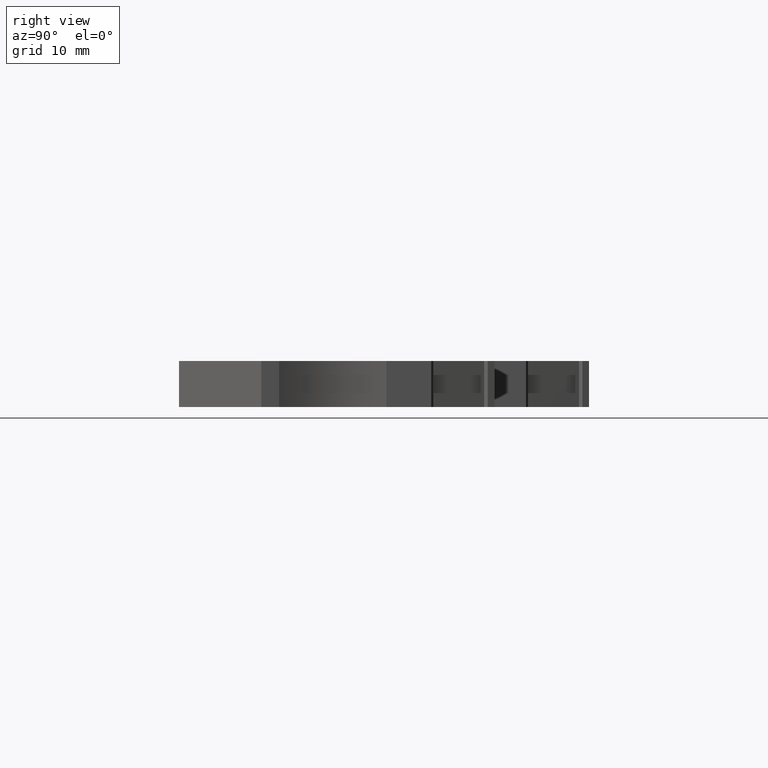
[diagram: clean part render]
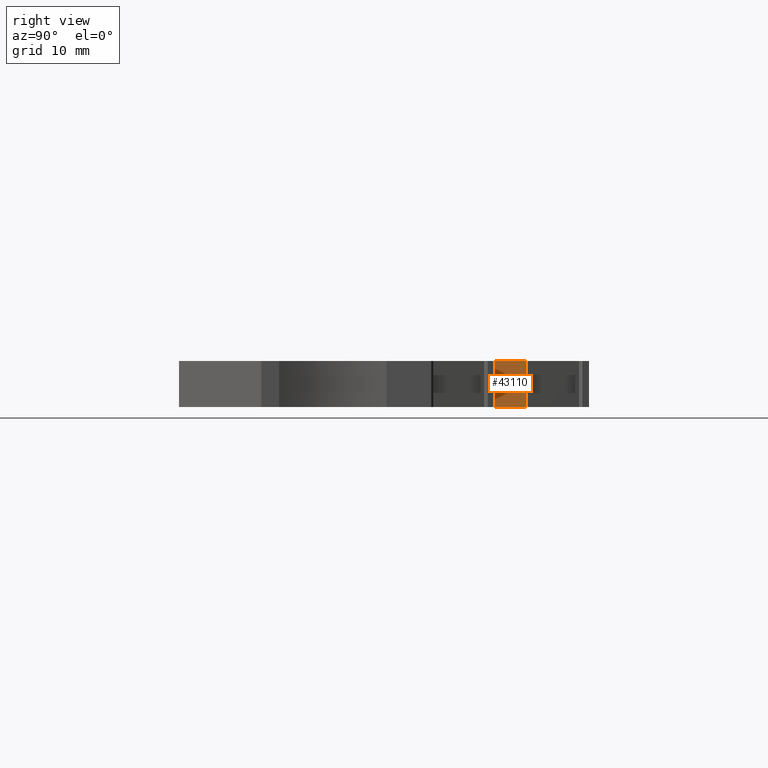
[diagram: same view with one face highlighted and labeled with its STEP entity id]
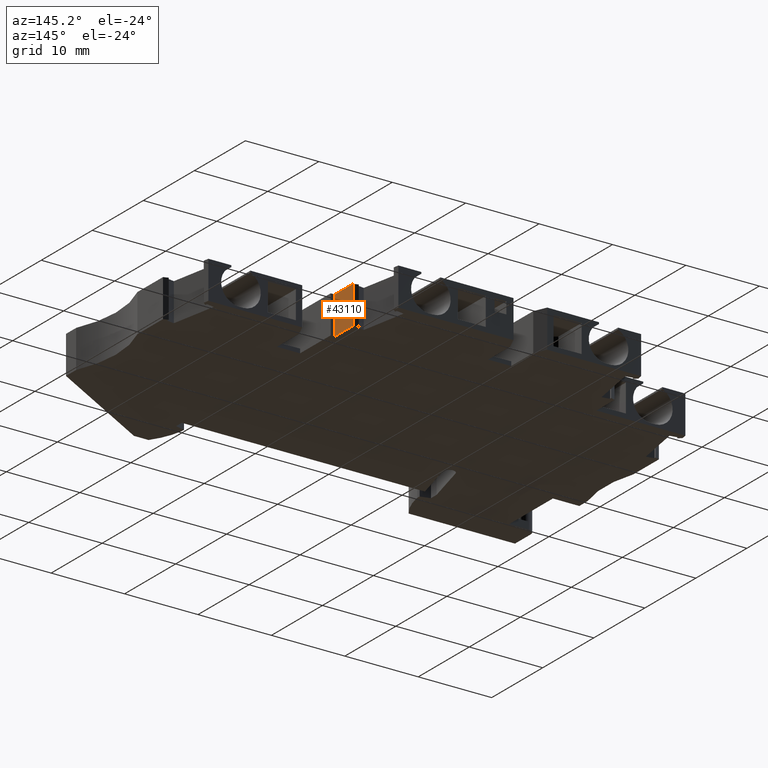
[diagram: same view with one face highlighted and labeled with its STEP entity id]
A machine part, right view. The second image highlights one B-rep face of the part: STEP entity #43110.
A second angle (auxiliary view) of the same face is appended — the face is thin or edge-on in the first view.
In plain terms, the highlighted planar face has unit normal (-1, -0, -0).
Its self-contained STEP definition (entity closure, byte-faithful):
#2060=CARTESIAN_POINT('',(184.368635726432,31.7467138221735,
48.5199999999999));
#2070=VERTEX_POINT('',#2060);
#2100=CARTESIAN_POINT('',(184.368635726432,-15.1764489999999,48.52));
#2110=DIRECTION('',(-5.46784839627889E-15,1.,0.));
#2120=VECTOR('',#2110,1.);
#2130=LINE('',#2100,#2120);
#2140=CARTESIAN_POINT('',(184.368635726432,35.3030731488271,48.52));
#2150=VERTEX_POINT('',#2140);
#2160=EDGE_CURVE('',#2070,#2150,#2130,.T.);
#42370=CARTESIAN_POINT('',(184.368635726432,35.3030731488271,53.67));
#42380=VERTEX_POINT('',#42370);
#42480=CARTESIAN_POINT('',(184.368635726432,35.3030731488271,53.67));
#42490=DIRECTION('',(0.,0.,1.));
#42500=VECTOR('',#42490,1.);
#42510=LINE('',#42480,#42500);
#42520=EDGE_CURVE('',#2150,#42380,#42510,.T.);
#42730=CARTESIAN_POINT('',(184.368635726432,31.7467138221735,53.67));
#42740=VERTEX_POINT('',#42730);
#42770=CARTESIAN_POINT('',(184.368635726432,31.7467138221735,53.67));
#42780=DIRECTION('',(0.,0.,-1.));
#42790=VECTOR('',#42780,1.);
#42800=LINE('',#42770,#42790);
#42810=EDGE_CURVE('',#42740,#2070,#42800,.T.);
#42950=CARTESIAN_POINT('',(184.368635726432,35.0229901335411,53.67));
#42960=DIRECTION('',(-1.,-5.46784839627889E-15,-0.));
#42970=DIRECTION('',(-5.46784839627889E-15,1.,0.));
#42980=AXIS2_PLACEMENT_3D('',#42950,#42960,#42970);
#42990=PLANE('',#42980);
#43000=CARTESIAN_POINT('',(184.368635726432,-15.1764489999999,53.67));
#43010=DIRECTION('',(-5.46784839627889E-15,1.,0.));
#43020=VECTOR('',#43010,1.);
#43030=LINE('',#43000,#43020);
#43040=EDGE_CURVE('',#42740,#42380,#43030,.T.);
#43050=ORIENTED_EDGE('',*,*,#43040,.F.);
#43060=ORIENTED_EDGE('',*,*,#42520,.T.);
#43070=ORIENTED_EDGE('',*,*,#2160,.T.);
#43080=ORIENTED_EDGE('',*,*,#42810,.T.);
#43090=EDGE_LOOP('',(#43080,#43070,#43060,#43050));
#43100=FACE_OUTER_BOUND('',#43090,.T.);
#43110=ADVANCED_FACE('',(#43100),#42990,.F.);